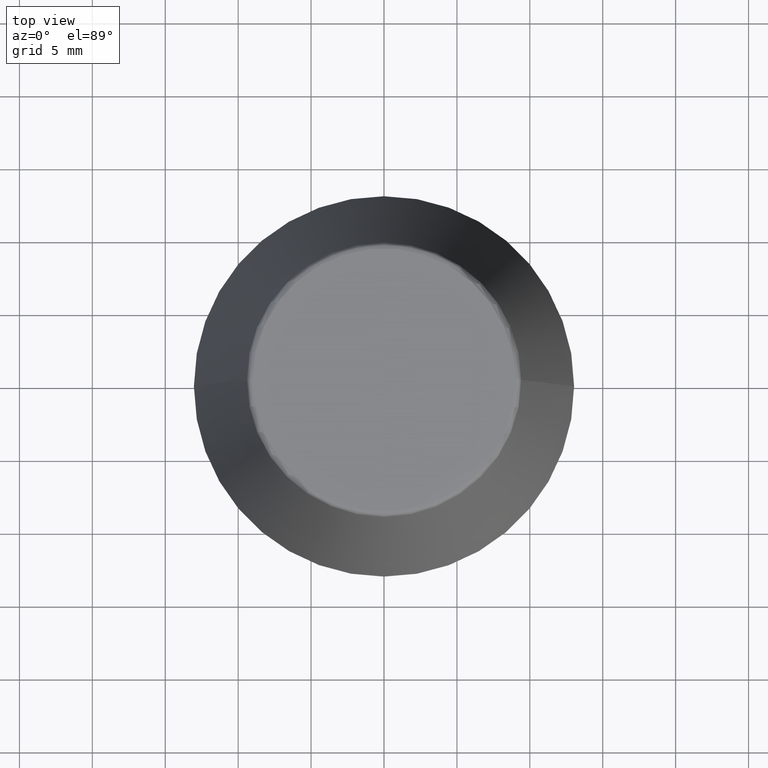
[diagram: clean part render]
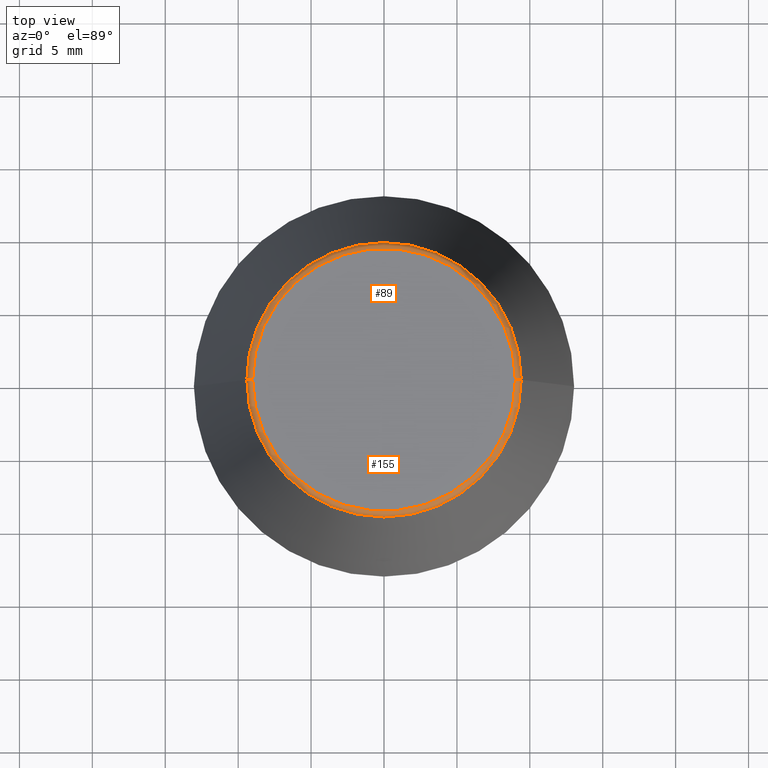
[diagram: same view with one multi-face feature highlighted, each face labeled with its STEP entity id]
A machine part, top view. The highlighted faces form ONE feature: a constant-radius fillet chain: 2 tangent blend faces with common blend radius 0.4 mm. The faces share edges in the B-rep.
Their STEP definitions:
[1] entity #89 (Torus):
#9 = CARTESIAN_POINT ( 'NONE',  ( 0.0000000000000000000, 0.0000000000000000000, 33.60000000000000100 ) ) ;
#13 = VERTEX_POINT ( 'NONE', #373 ) ;
#16 = ORIENTED_EDGE ( 'NONE', *, *, #334, .F. ) ;
#37 = CARTESIAN_POINT ( 'NONE',  ( -9.012603057622234500, 1.127980121063915600E-015, 34.00000000000000000 ) ) ;
#42 = DIRECTION ( 'NONE',  ( 1.000000000000000000, 0.0000000000000000000, 0.0000000000000000000 ) ) ;
#89 = ADVANCED_FACE ( 'NONE', ( #177 ), #97, .T. ) ;
#97 = TOROIDAL_SURFACE ( 'NONE', #250, 9.012603057622234500, 0.4000000000000009700 ) ;
#98 = CARTESIAN_POINT ( 'NONE',  ( 0.0000000000000000000, 0.0000000000000000000, 33.65566924038402900 ) ) ;
#102 = VERTEX_POINT ( 'NONE', #331 ) ;
#117 = DIRECTION ( 'NONE',  ( 0.0000000000000000000, -1.000000000000000000, 0.0000000000000000000 ) ) ;
#124 = VERTEX_POINT ( 'NONE', #241 ) ;
#140 = CARTESIAN_POINT ( 'NONE',  ( -9.012603057622234500, 1.103725548650271700E-015, 33.60000000000000100 ) ) ;
#143 = DIRECTION ( 'NONE',  ( -1.000000000000000000, 1.224646799147353200E-016, 0.0000000000000000000 ) ) ;
#150 = CIRCLE ( 'NONE', #368, 0.3999999999999975800 ) ;
#152 = DIRECTION ( 'NONE',  ( 1.000000000000000000, 0.0000000000000000000, 0.0000000000000000000 ) ) ;
#153 = CARTESIAN_POINT ( 'NONE',  ( 0.0000000000000000000, 0.0000000000000000000, 34.00000000000000000 ) ) ;
#168 = ORIENTED_EDGE ( 'NONE', *, *, #330, .T. ) ;
#170 = DIRECTION ( 'NONE',  ( 0.0000000000000000000, 0.0000000000000000000, -1.000000000000000000 ) ) ;
#173 = VERTEX_POINT ( 'NONE', #37 ) ;
#177 = FACE_OUTER_BOUND ( 'NONE', #365, .T. ) ;
#183 = EDGE_CURVE ( 'NONE', #13, #173, #351, .T. ) ;
#185 = ORIENTED_EDGE ( 'NONE', *, *, #183, .F. ) ;
#226 = AXIS2_PLACEMENT_3D ( 'NONE', #153, #360, #238 ) ;
#234 = CIRCLE ( 'NONE', #380, 0.4000000000000010200 ) ;
#238 = DIRECTION ( 'NONE',  ( 1.000000000000000000, 0.0000000000000000000, 0.0000000000000000000 ) ) ;
#241 = CARTESIAN_POINT ( 'NONE',  ( 9.408710285118862900, 1.374377508408924700E-015, 33.65566924038402900 ) ) ;
#250 = AXIS2_PLACEMENT_3D ( 'NONE', #9, #300, #42 ) ;
#253 = DIRECTION ( 'NONE',  ( 1.224646799147353200E-016, 1.000000000000000000, 0.0000000000000000000 ) ) ;
#282 = ORIENTED_EDGE ( 'NONE', *, *, #337, .T. ) ;
#284 = AXIS2_PLACEMENT_3D ( 'NONE', #98, #354, #152 ) ;
#285 = CARTESIAN_POINT ( 'NONE',  ( 9.012603057622234500, 0.0000000000000000000, 33.60000000000000100 ) ) ;
#300 = DIRECTION ( 'NONE',  ( -0.0000000000000000000, -0.0000000000000000000, 1.000000000000000000 ) ) ;
#313 = CIRCLE ( 'NONE', #284, 9.408710285118862900 ) ;
#330 = EDGE_CURVE ( 'NONE', #102, #173, #234, .T. ) ;
#331 = CARTESIAN_POINT ( 'NONE',  ( -9.408710285118862900, 0.0000000000000000000, 33.65566924038402900 ) ) ;
#334 = EDGE_CURVE ( 'NONE', #124, #13, #150, .T. ) ;
#337 = EDGE_CURVE ( 'NONE', #124, #102, #313, .T. ) ;
#351 = CIRCLE ( 'NONE', #226, 9.012603057622234500 ) ;
#354 = DIRECTION ( 'NONE',  ( -0.0000000000000000000, -0.0000000000000000000, 1.000000000000000000 ) ) ;
#360 = DIRECTION ( 'NONE',  ( -0.0000000000000000000, -0.0000000000000000000, 1.000000000000000000 ) ) ;
#365 = EDGE_LOOP ( 'NONE', ( #282, #168, #185, #16 ) ) ;
#368 = AXIS2_PLACEMENT_3D ( 'NONE', #285, #117, #170 ) ;
#373 = CARTESIAN_POINT ( 'NONE',  ( 9.012603057622234500, 0.0000000000000000000, 34.00000000000000000 ) ) ;
#380 = AXIS2_PLACEMENT_3D ( 'NONE', #140, #253, #143 ) ;
[2] entity #155 (Torus):
#10 = DIRECTION ( 'NONE',  ( -0.0000000000000000000, -0.0000000000000000000, 1.000000000000000000 ) ) ;
#13 = VERTEX_POINT ( 'NONE', #373 ) ;
#23 = AXIS2_PLACEMENT_3D ( 'NONE', #212, #127, #326 ) ;
#37 = CARTESIAN_POINT ( 'NONE',  ( -9.012603057622234500, 1.127980121063915600E-015, 34.00000000000000000 ) ) ;
#79 = CARTESIAN_POINT ( 'NONE',  ( 0.0000000000000000000, 0.0000000000000000000, 33.65566924038402900 ) ) ;
#81 = DIRECTION ( 'NONE',  ( 1.000000000000000000, 0.0000000000000000000, 0.0000000000000000000 ) ) ;
#102 = VERTEX_POINT ( 'NONE', #331 ) ;
#117 = DIRECTION ( 'NONE',  ( 0.0000000000000000000, -1.000000000000000000, 0.0000000000000000000 ) ) ;
#124 = VERTEX_POINT ( 'NONE', #241 ) ;
#127 = DIRECTION ( 'NONE',  ( -0.0000000000000000000, -0.0000000000000000000, 1.000000000000000000 ) ) ;
#140 = CARTESIAN_POINT ( 'NONE',  ( -9.012603057622234500, 1.103725548650271700E-015, 33.60000000000000100 ) ) ;
#143 = DIRECTION ( 'NONE',  ( -1.000000000000000000, 1.224646799147353200E-016, 0.0000000000000000000 ) ) ;
#144 = EDGE_LOOP ( 'NONE', ( #297, #228, #214, #172 ) ) ;
#150 = CIRCLE ( 'NONE', #368, 0.3999999999999975800 ) ;
#155 = ADVANCED_FACE ( 'NONE', ( #181 ), #244, .T. ) ;
#170 = DIRECTION ( 'NONE',  ( 0.0000000000000000000, 0.0000000000000000000, -1.000000000000000000 ) ) ;
#172 = ORIENTED_EDGE ( 'NONE', *, *, #348, .F. ) ;
#173 = VERTEX_POINT ( 'NONE', #37 ) ;
#178 = DIRECTION ( 'NONE',  ( -0.0000000000000000000, -0.0000000000000000000, 1.000000000000000000 ) ) ;
#181 = FACE_OUTER_BOUND ( 'NONE', #144, .T. ) ;
#206 = AXIS2_PLACEMENT_3D ( 'NONE', #79, #10, #81 ) ;
#212 = CARTESIAN_POINT ( 'NONE',  ( 0.0000000000000000000, 0.0000000000000000000, 33.60000000000000100 ) ) ;
#214 = ORIENTED_EDGE ( 'NONE', *, *, #334, .T. ) ;
#228 = ORIENTED_EDGE ( 'NONE', *, *, #316, .T. ) ;
#234 = CIRCLE ( 'NONE', #380, 0.4000000000000010200 ) ;
#241 = CARTESIAN_POINT ( 'NONE',  ( 9.408710285118862900, 1.374377508408924700E-015, 33.65566924038402900 ) ) ;
#244 = TOROIDAL_SURFACE ( 'NONE', #23, 9.012603057622234500, 0.4000000000000009700 ) ;
#253 = DIRECTION ( 'NONE',  ( 1.224646799147353200E-016, 1.000000000000000000, 0.0000000000000000000 ) ) ;
#280 = AXIS2_PLACEMENT_3D ( 'NONE', #319, #178, #349 ) ;
#285 = CARTESIAN_POINT ( 'NONE',  ( 9.012603057622234500, 0.0000000000000000000, 33.60000000000000100 ) ) ;
#297 = ORIENTED_EDGE ( 'NONE', *, *, #330, .F. ) ;
#304 = CIRCLE ( 'NONE', #206, 9.408710285118862900 ) ;
#316 = EDGE_CURVE ( 'NONE', #102, #124, #304, .T. ) ;
#319 = CARTESIAN_POINT ( 'NONE',  ( 0.0000000000000000000, 0.0000000000000000000, 34.00000000000000000 ) ) ;
#326 = DIRECTION ( 'NONE',  ( 1.000000000000000000, 0.0000000000000000000, 0.0000000000000000000 ) ) ;
#330 = EDGE_CURVE ( 'NONE', #102, #173, #234, .T. ) ;
#331 = CARTESIAN_POINT ( 'NONE',  ( -9.408710285118862900, 0.0000000000000000000, 33.65566924038402900 ) ) ;
#334 = EDGE_CURVE ( 'NONE', #124, #13, #150, .T. ) ;
#348 = EDGE_CURVE ( 'NONE', #173, #13, #382, .T. ) ;
#349 = DIRECTION ( 'NONE',  ( 1.000000000000000000, 0.0000000000000000000, 0.0000000000000000000 ) ) ;
#368 = AXIS2_PLACEMENT_3D ( 'NONE', #285, #117, #170 ) ;
#373 = CARTESIAN_POINT ( 'NONE',  ( 9.012603057622234500, 0.0000000000000000000, 34.00000000000000000 ) ) ;
#380 = AXIS2_PLACEMENT_3D ( 'NONE', #140, #253, #143 ) ;
#382 = CIRCLE ( 'NONE', #280, 9.012603057622234500 ) ;